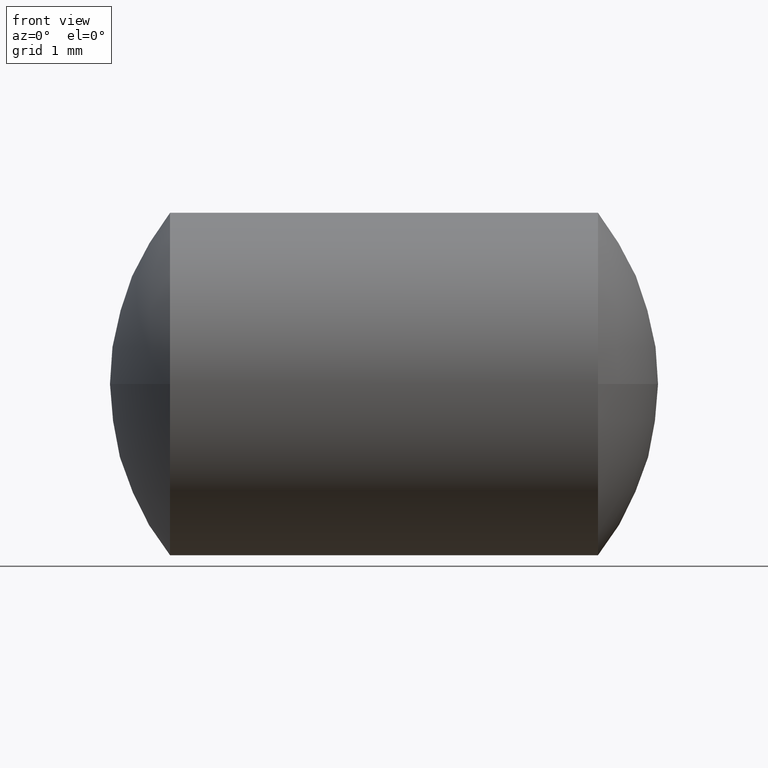
[diagram: clean part render]
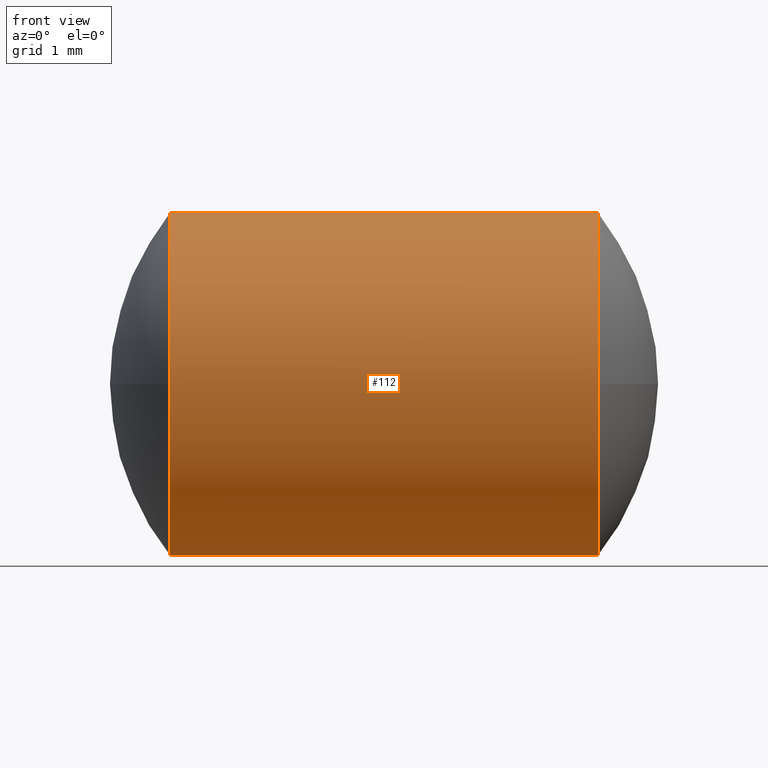
[diagram: same view with one face highlighted and labeled with its STEP entity id]
A machine part, front view. The second image highlights one B-rep face of the part: STEP entity #112.
In plain terms, the highlighted cylindrical surface (partial cylindrical patch) has radius 2.4995 mm, axis along (-1, -0, -0).
Its self-contained STEP definition (entity closure, byte-faithful):
#4 = CIRCLE ( 'NONE', #198, 2.499493842869673800 ) ;
#5 = VERTEX_POINT ( 'NONE', #229 ) ;
#11 = EDGE_CURVE ( 'NONE', #276, #92, #101, .T. ) ;
#29 = CARTESIAN_POINT ( 'NONE',  ( -3.122904181920511700, 0.0000000000000000000, 0.0000000000000000000 ) ) ;
#31 = CARTESIAN_POINT ( 'NONE',  ( -4.636041519915886900, 3.060997134158864300E-016, -2.499493842869674700 ) ) ;
#32 = CARTESIAN_POINT ( 'NONE',  ( -3.122904181920511700, 0.0000000000000000000, 0.0000000000000000000 ) ) ;
#48 = AXIS2_PLACEMENT_3D ( 'NONE', #58, #291, #102 ) ;
#49 = CYLINDRICAL_SURFACE ( 'NONE', #180, 2.499493842869674700 ) ;
#58 = CARTESIAN_POINT ( 'NONE',  ( 3.122904181920509900, 0.0000000000000000000, 0.0000000000000000000 ) ) ;
#60 = DIRECTION ( 'NONE',  ( 0.0000000000000000000, 0.0000000000000000000, 1.000000000000000000 ) ) ;
#65 = CIRCLE ( 'NONE', #244, 2.499493842869675600 ) ;
#78 = DIRECTION ( 'NONE',  ( -1.000000000000000000, -0.0000000000000000000, -0.0000000000000000000 ) ) ;
#79 = DIRECTION ( 'NONE',  ( 0.0000000000000000000, 0.0000000000000000000, 1.000000000000000000 ) ) ;
#81 = DIRECTION ( 'NONE',  ( -1.000000000000000000, -0.0000000000000000000, -0.0000000000000000000 ) ) ;
#85 = CIRCLE ( 'NONE', #221, 2.499493842869673800 ) ;
#88 = VECTOR ( 'NONE', #99, 1000.000000000000000 ) ;
#92 = VERTEX_POINT ( 'NONE', #345 ) ;
#99 = DIRECTION ( 'NONE',  ( -1.000000000000000000, -0.0000000000000000000, -0.0000000000000000000 ) ) ;
#101 = LINE ( 'NONE', #282, #88 ) ;
#102 = DIRECTION ( 'NONE',  ( 0.0000000000000000000, 0.0000000000000000000, 1.000000000000000000 ) ) ;
#106 = EDGE_LOOP ( 'NONE', ( #303, #165, #239, #316, #185, #268 ) ) ;
#112 = ADVANCED_FACE ( 'NONE', ( #342 ), #49, .T. ) ;
#116 = VERTEX_POINT ( 'NONE', #317 ) ;
#120 = VECTOR ( 'NONE', #202, 1000.000000000000000 ) ;
#124 = DIRECTION ( 'NONE',  ( -1.000000000000000000, -0.0000000000000000000, -0.0000000000000000000 ) ) ;
#127 = CARTESIAN_POINT ( 'NONE',  ( -4.636041519915886900, 0.0000000000000000000, 0.0000000000000000000 ) ) ;
#142 = CIRCLE ( 'NONE', #48, 2.499493842869675600 ) ;
#165 = ORIENTED_EDGE ( 'NONE', *, *, #169, .T. ) ;
#169 = EDGE_CURVE ( 'NONE', #5, #344, #142, .T. ) ;
#179 = LINE ( 'NONE', #31, #120 ) ;
#180 = AXIS2_PLACEMENT_3D ( 'NONE', #127, #124, #312 ) ;
#185 = ORIENTED_EDGE ( 'NONE', *, *, #307, .F. ) ;
#198 = AXIS2_PLACEMENT_3D ( 'NONE', #29, #238, #234 ) ;
#202 = DIRECTION ( 'NONE',  ( -1.000000000000000000, -0.0000000000000000000, -0.0000000000000000000 ) ) ;
#203 = VERTEX_POINT ( 'NONE', #263 ) ;
#207 = CARTESIAN_POINT ( 'NONE',  ( 3.122904181920509900, 0.0000000000000000000, 0.0000000000000000000 ) ) ;
#221 = AXIS2_PLACEMENT_3D ( 'NONE', #32, #81, #60 ) ;
#229 = CARTESIAN_POINT ( 'NONE',  ( 3.122904181920509900, 3.060997134158865800E-016, -2.499493842869676000 ) ) ;
#234 = DIRECTION ( 'NONE',  ( 0.0000000000000000000, 0.0000000000000000000, 1.000000000000000000 ) ) ;
#238 = DIRECTION ( 'NONE',  ( -1.000000000000000000, -0.0000000000000000000, -0.0000000000000000000 ) ) ;
#239 = ORIENTED_EDGE ( 'NONE', *, *, #311, .T. ) ;
#244 = AXIS2_PLACEMENT_3D ( 'NONE', #207, #78, #79 ) ;
#263 = CARTESIAN_POINT ( 'NONE',  ( -3.122904181920511700, -2.499493842869673400, -3.060997134158862800E-016 ) ) ;
#268 = ORIENTED_EDGE ( 'NONE', *, *, #270, .F. ) ;
#270 = EDGE_CURVE ( 'NONE', #116, #203, #85, .T. ) ;
#273 = EDGE_CURVE ( 'NONE', #5, #116, #179, .T. ) ;
#276 = VERTEX_POINT ( 'NONE', #292 ) ;
#282 = CARTESIAN_POINT ( 'NONE',  ( -4.636041519915886900, 0.0000000000000000000, 2.499493842869674700 ) ) ;
#291 = DIRECTION ( 'NONE',  ( -1.000000000000000000, -0.0000000000000000000, -0.0000000000000000000 ) ) ;
#292 = CARTESIAN_POINT ( 'NONE',  ( 3.122904181920509900, 0.0000000000000000000, 2.499493842869676000 ) ) ;
#295 = CARTESIAN_POINT ( 'NONE',  ( 3.122904181920509900, -2.499493842869675600, -3.060997134158865800E-016 ) ) ;
#303 = ORIENTED_EDGE ( 'NONE', *, *, #273, .F. ) ;
#307 = EDGE_CURVE ( 'NONE', #203, #92, #4, .T. ) ;
#311 = EDGE_CURVE ( 'NONE', #344, #276, #65, .T. ) ;
#312 = DIRECTION ( 'NONE',  ( 0.0000000000000000000, 0.0000000000000000000, 1.000000000000000000 ) ) ;
#316 = ORIENTED_EDGE ( 'NONE', *, *, #11, .T. ) ;
#317 = CARTESIAN_POINT ( 'NONE',  ( -3.122904181920511700, 3.060997134158863800E-016, -2.499493842869673800 ) ) ;
#342 = FACE_OUTER_BOUND ( 'NONE', #106, .T. ) ;
#344 = VERTEX_POINT ( 'NONE', #295 ) ;
#345 = CARTESIAN_POINT ( 'NONE',  ( -3.122904181920511700, 0.0000000000000000000, 2.499493842869673800 ) ) ;